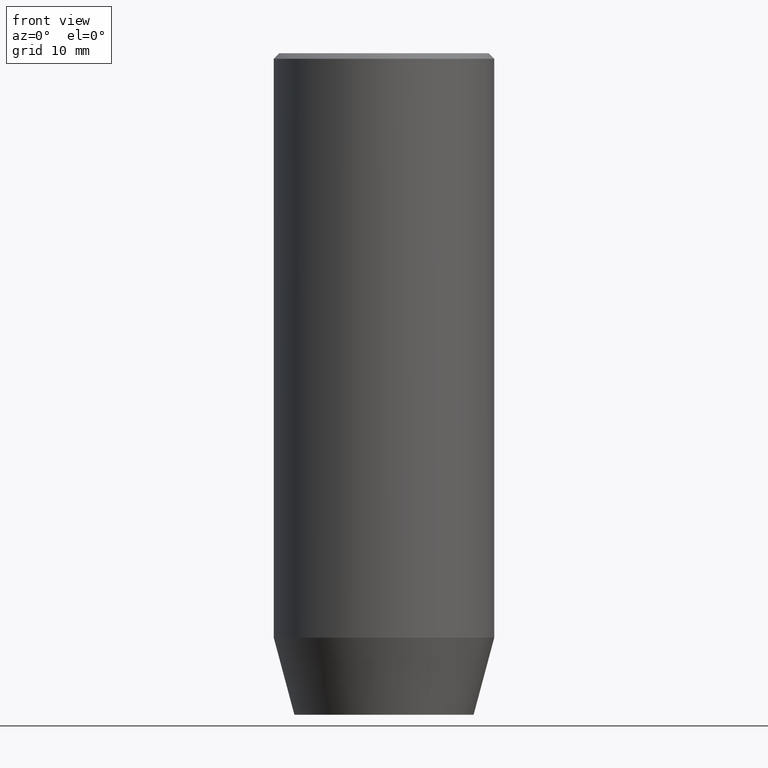
[diagram: clean part render]
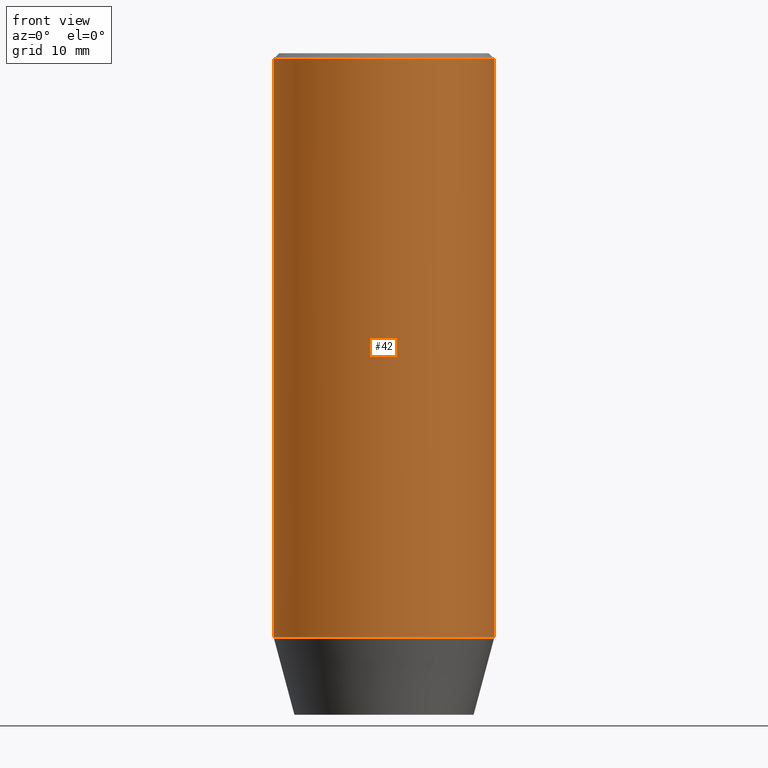
[diagram: same view with one face highlighted and labeled with its STEP entity id]
A machine part, front view. The second image highlights one B-rep face of the part: STEP entity #42.
In plain terms, the highlighted cylindrical surface (partial cylindrical patch) has radius 10 mm, axis along (-0, -0, 1).
Its self-contained STEP definition (entity closure, byte-faithful):
#12 = FACE_OUTER_BOUND ( 'NONE', #113, .T. ) ;
#19 = DIRECTION ( 'NONE',  ( 1.000000000000000000, 0.000000000000000000, 0.000000000000000000 ) ) ;
#27 = CARTESIAN_POINT ( 'NONE',  ( 0.000000000000000000, 0.000000000000000000, -0.5000000000000056621 ) ) ;
#35 = CARTESIAN_POINT ( 'NONE',  ( -10.00000000000000000, 1.224646799147353256E-15, -53.00000000000000000 ) ) ;
#42 = ADVANCED_FACE ( 'NONE', ( #12 ), #99, .T. ) ;
#44 = VECTOR ( 'NONE', #495, 1000.000000000000000 ) ;
#99 = CYLINDRICAL_SURFACE ( 'NONE', #320, 10.00000000000000000 ) ;
#108 = VECTOR ( 'NONE', #362, 1000.000000000000000 ) ;
#113 = EDGE_LOOP ( 'NONE', ( #131, #440, #347, #324 ) ) ;
#131 = ORIENTED_EDGE ( 'NONE', *, *, #339, .F. ) ;
#134 = VERTEX_POINT ( 'NONE', #314 ) ;
#167 = EDGE_CURVE ( 'NONE', #193, #134, #274, .T. ) ;
#181 = CIRCLE ( 'NONE', #429, 10.00000000000000000 ) ;
#193 = VERTEX_POINT ( 'NONE', #552 ) ;
#202 = CARTESIAN_POINT ( 'NONE',  ( -10.00000000000000000, 1.224646799147353256E-15, -0.5000000000000056621 ) ) ;
#208 = DIRECTION ( 'NONE',  ( -0.000000000000000000, -0.000000000000000000, 1.000000000000000000 ) ) ;
#210 = DIRECTION ( 'NONE',  ( 0.000000000000000000, 0.000000000000000000, -1.000000000000000000 ) ) ;
#274 = LINE ( 'NONE', #491, #44 ) ;
#275 = LINE ( 'NONE', #584, #108 ) ;
#276 = EDGE_CURVE ( 'NONE', #134, #518, #354, .T. ) ;
#314 = CARTESIAN_POINT ( 'NONE',  ( 10.00000000000000000, 0.000000000000000000, -0.5000000000000056621 ) ) ;
#320 = AXIS2_PLACEMENT_3D ( 'NONE', #358, #377, #437 ) ;
#323 = EDGE_CURVE ( 'NONE', #393, #193, #181, .T. ) ;
#324 = ORIENTED_EDGE ( 'NONE', *, *, #276, .T. ) ;
#339 = EDGE_CURVE ( 'NONE', #393, #518, #275, .T. ) ;
#340 = CARTESIAN_POINT ( 'NONE',  ( 0.000000000000000000, 0.000000000000000000, -53.00000000000000000 ) ) ;
#347 = ORIENTED_EDGE ( 'NONE', *, *, #167, .T. ) ;
#354 = CIRCLE ( 'NONE', #448, 10.00000000000000000 ) ;
#358 = CARTESIAN_POINT ( 'NONE',  ( 0.000000000000000000, 0.000000000000000000, 0.000000000000000000 ) ) ;
#362 = DIRECTION ( 'NONE',  ( -0.000000000000000000, -0.000000000000000000, 1.000000000000000000 ) ) ;
#377 = DIRECTION ( 'NONE',  ( -0.000000000000000000, -0.000000000000000000, 1.000000000000000000 ) ) ;
#393 = VERTEX_POINT ( 'NONE', #35 ) ;
#429 = AXIS2_PLACEMENT_3D ( 'NONE', #340, #208, #513 ) ;
#437 = DIRECTION ( 'NONE',  ( 1.000000000000000000, 0.000000000000000000, 0.000000000000000000 ) ) ;
#440 = ORIENTED_EDGE ( 'NONE', *, *, #323, .T. ) ;
#448 = AXIS2_PLACEMENT_3D ( 'NONE', #27, #210, #19 ) ;
#491 = CARTESIAN_POINT ( 'NONE',  ( 10.00000000000000000, 0.000000000000000000, 0.000000000000000000 ) ) ;
#495 = DIRECTION ( 'NONE',  ( -0.000000000000000000, -0.000000000000000000, 1.000000000000000000 ) ) ;
#513 = DIRECTION ( 'NONE',  ( 1.000000000000000000, 0.000000000000000000, 0.000000000000000000 ) ) ;
#518 = VERTEX_POINT ( 'NONE', #202 ) ;
#552 = CARTESIAN_POINT ( 'NONE',  ( 10.00000000000000000, 0.000000000000000000, -53.00000000000000000 ) ) ;
#584 = CARTESIAN_POINT ( 'NONE',  ( -10.00000000000000000, 1.224646799147353256E-15, 0.000000000000000000 ) ) ;